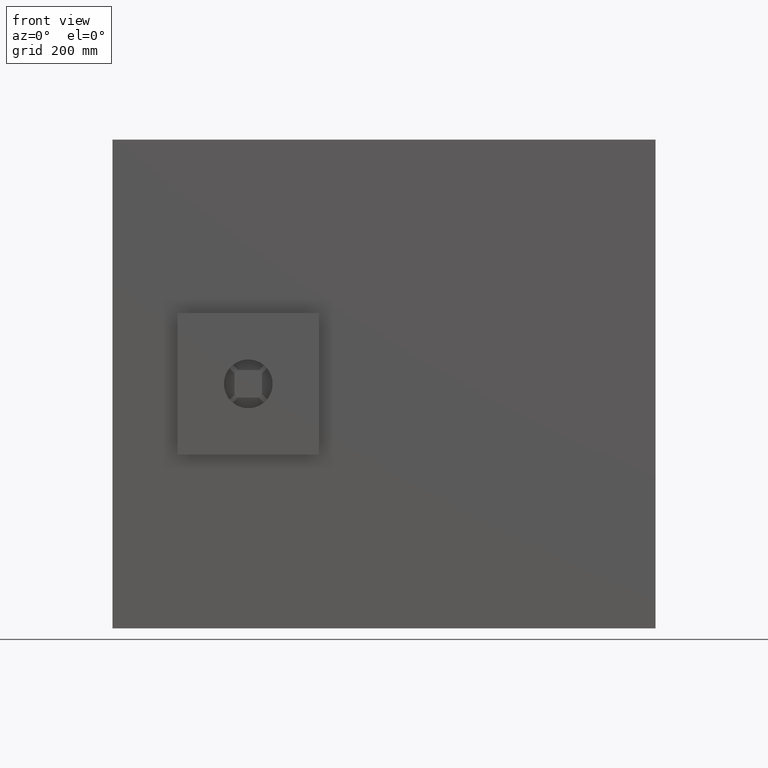
[diagram: clean part render]
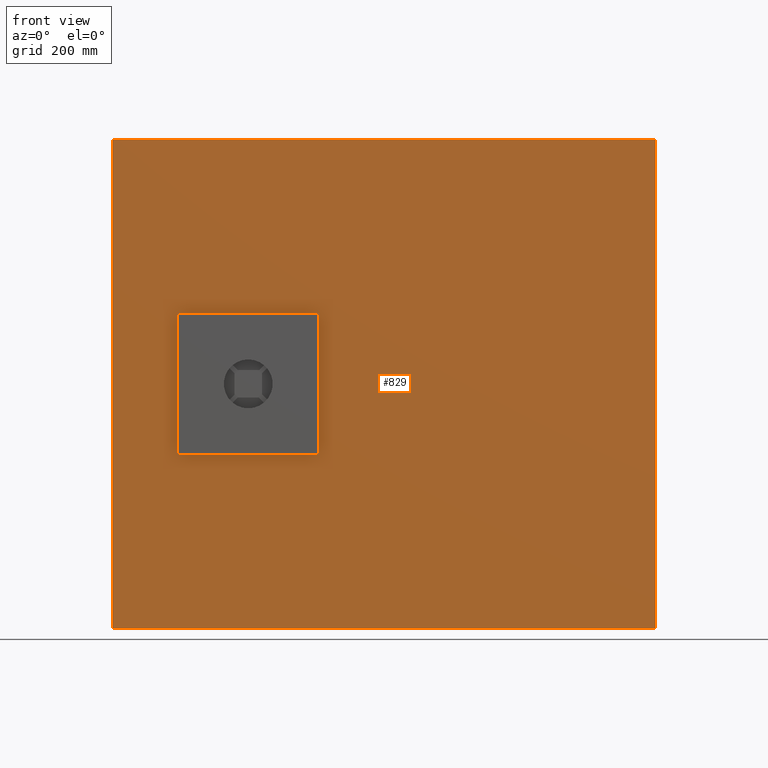
[diagram: same view with one face highlighted and labeled with its STEP entity id]
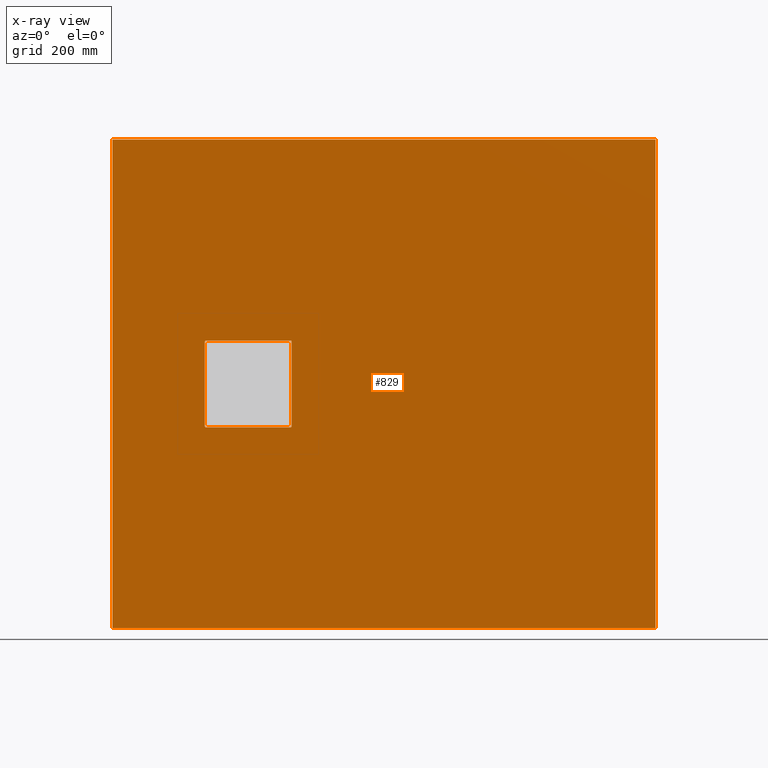
[diagram: x-ray of the same camera — body ghosted, the highlighted face saturated]
A machine part, front view. The second image highlights one B-rep face of the part: STEP entity #829.
The next image is the same camera in x-ray: the body ghosted, the highlighted face saturated — about 0% of this face is hidden behind the body in this view.
In plain terms, the highlighted planar face has unit normal (0, 1, 0).
Its self-contained STEP definition (entity closure, byte-faithful):
#26 = CIRCLE ( 'NONE', #2065, 2.500000000000002200 ) ;
#32 = VERTEX_POINT ( 'NONE', #859 ) ;
#62 = EDGE_CURVE ( 'NONE', #839, #1597, #1187, .T. ) ;
#68 = ORIENTED_EDGE ( 'NONE', *, *, #1830, .F. ) ;
#80 = ORIENTED_EDGE ( 'NONE', *, *, #2831, .T. ) ;
#104 = LINE ( 'NONE', #1188, #2818 ) ;
#168 = ORIENTED_EDGE ( 'NONE', *, *, #1477, .T. ) ;
#224 = CARTESIAN_POINT ( 'NONE',  ( 500.0000000000000000, 0.0000000000000000000, -450.0000000000002300 ) ) ;
#228 = FACE_BOUND ( 'NONE', #250, .T. ) ;
#250 = EDGE_LOOP ( 'NONE', ( #830, #3089, #1817, #168, #2284, #80, #396, #886 ) ) ;
#268 = DIRECTION ( 'NONE',  ( -1.233581138472396200E-016, -0.0000000000000000000, -1.000000000000000000 ) ) ;
#288 = LINE ( 'NONE', #3149, #1631 ) ;
#326 = CARTESIAN_POINT ( 'NONE',  ( -327.5000000000001100, 0.0000000000000000000, 79.99999999999984400 ) ) ;
#349 = FACE_OUTER_BOUND ( 'NONE', #2066, .T. ) ;
#359 = CARTESIAN_POINT ( 'NONE',  ( 500.0000000000000000, 0.0000000000000000000, -450.0000000000002300 ) ) ;
#396 = ORIENTED_EDGE ( 'NONE', *, *, #1508, .T. ) ;
#628 = CARTESIAN_POINT ( 'NONE',  ( 500.0000000000000000, 0.0000000000000000000, 449.9999999999998300 ) ) ;
#635 = ORIENTED_EDGE ( 'NONE', *, *, #1827, .F. ) ;
#652 = CARTESIAN_POINT ( 'NONE',  ( -330.0000000000000600, 0.0000000000000000000, 77.49999999999990100 ) ) ;
#676 = CARTESIAN_POINT ( 'NONE',  ( -330.0000000000000600, 0.0000000000000000000, -77.50000000000024200 ) ) ;
#680 = DIRECTION ( 'NONE',  ( 0.0000000000000000000, 1.000000000000000000, 0.0000000000000000000 ) ) ;
#683 = ORIENTED_EDGE ( 'NONE', *, *, #2115, .F. ) ;
#700 = CARTESIAN_POINT ( 'NONE',  ( -327.4999999999996600, 0.0000000000000000000, -77.50000000000024200 ) ) ;
#705 = DIRECTION ( 'NONE',  ( 0.0000000000000000000, 1.000000000000000000, 0.0000000000000000000 ) ) ;
#721 = VECTOR ( 'NONE', #3176, 1000.000000000000000 ) ;
#733 = DIRECTION ( 'NONE',  ( 0.0000000000000000000, 0.0000000000000000000, 1.000000000000000000 ) ) ;
#829 = ADVANCED_FACE ( 'NONE', ( #228, #349 ), #1519, .F. ) ;
#830 = ORIENTED_EDGE ( 'NONE', *, *, #2120, .T. ) ;
#839 = VERTEX_POINT ( 'NONE', #652 ) ;
#859 = CARTESIAN_POINT ( 'NONE',  ( -327.4999999999996600, 0.0000000000000000000, -80.00000000000018500 ) ) ;
#886 = ORIENTED_EDGE ( 'NONE', *, *, #62, .T. ) ;
#946 = AXIS2_PLACEMENT_3D ( 'NONE', #2040, #2033, #2026 ) ;
#974 = DIRECTION ( 'NONE',  ( 1.000000000000000000, 0.0000000000000000000, -8.953411488912546000E-017 ) ) ;
#987 = ORIENTED_EDGE ( 'NONE', *, *, #2707, .F. ) ;
#1187 = CIRCLE ( 'NONE', #3270, 2.499999999999974200 ) ;
#1188 = CARTESIAN_POINT ( 'NONE',  ( -500.0000000000000000, 0.0000000000000000000, 449.9999999999998300 ) ) ;
#1201 = VERTEX_POINT ( 'NONE', #2116 ) ;
#1219 = CARTESIAN_POINT ( 'NONE',  ( -500.0000000000000000, 0.0000000000000000000, -450.0000000000002300 ) ) ;
#1242 = DIRECTION ( 'NONE',  ( 0.0000000000000000000, 0.0000000000000000000, 1.000000000000000000 ) ) ;
#1304 = DIRECTION ( 'NONE',  ( 1.233581138472396200E-016, 0.0000000000000000000, 1.000000000000000000 ) ) ;
#1321 = DIRECTION ( 'NONE',  ( 0.0000000000000000000, 1.000000000000000000, 0.0000000000000000000 ) ) ;
#1385 = LINE ( 'NONE', #2293, #3036 ) ;
#1435 = VECTOR ( 'NONE', #268, 1000.000000000000000 ) ;
#1477 = EDGE_CURVE ( 'NONE', #2733, #2776, #3143, .T. ) ;
#1506 = LINE ( 'NONE', #326, #1933 ) ;
#1508 = EDGE_CURVE ( 'NONE', #3216, #839, #3110, .T. ) ;
#1519 = PLANE ( 'NONE',  #2335 ) ;
#1572 = LINE ( 'NONE', #224, #1435 ) ;
#1597 = VERTEX_POINT ( 'NONE', #1784 ) ;
#1631 = VECTOR ( 'NONE', #3146, 1000.000000000000000 ) ;
#1679 = VERTEX_POINT ( 'NONE', #359 ) ;
#1784 = CARTESIAN_POINT ( 'NONE',  ( -327.5000000000001100, 0.0000000000000000000, 79.99999999999984400 ) ) ;
#1805 = CARTESIAN_POINT ( 'NONE',  ( -500.0000000000000000, 0.0000000000000000000, 449.9999999999998300 ) ) ;
#1817 = ORIENTED_EDGE ( 'NONE', *, *, #2258, .T. ) ;
#1827 = EDGE_CURVE ( 'NONE', #2686, #3021, #104, .T. ) ;
#1830 = EDGE_CURVE ( 'NONE', #2009, #2686, #2368, .T. ) ;
#1885 = CARTESIAN_POINT ( 'NONE',  ( -330.0000000000000600, 0.0000000000000000000, -77.50000000000024200 ) ) ;
#1924 = EDGE_CURVE ( 'NONE', #2776, #32, #3152, .T. ) ;
#1933 = VECTOR ( 'NONE', #974, 1000.000000000000000 ) ;
#2009 = VERTEX_POINT ( 'NONE', #3189 ) ;
#2026 = DIRECTION ( 'NONE',  ( 0.0000000000000000000, 0.0000000000000000000, -1.000000000000000000 ) ) ;
#2033 = DIRECTION ( 'NONE',  ( 0.0000000000000000000, 1.000000000000000000, -0.0000000000000000000 ) ) ;
#2040 = CARTESIAN_POINT ( 'NONE',  ( -172.4999999999998900, 0.0000000000000000000, -77.50000000000024200 ) ) ;
#2065 = AXIS2_PLACEMENT_3D ( 'NONE', #2112, #2518, #2448 ) ;
#2066 = EDGE_LOOP ( 'NONE', ( #68, #987, #683, #635 ) ) ;
#2084 = CARTESIAN_POINT ( 'NONE',  ( -500.0000000000000000, 0.0000000000000000000, 449.9999999999998300 ) ) ;
#2112 = CARTESIAN_POINT ( 'NONE',  ( -172.4999999999998900, 0.0000000000000000000, 77.49999999999990100 ) ) ;
#2115 = EDGE_CURVE ( 'NONE', #3021, #1679, #1572, .T. ) ;
#2116 = CARTESIAN_POINT ( 'NONE',  ( -169.9999999999999400, 0.0000000000000000000, 77.49999999999990100 ) ) ;
#2120 = EDGE_CURVE ( 'NONE', #1597, #2976, #1506, .T. ) ;
#2187 = CARTESIAN_POINT ( 'NONE',  ( -172.4999999999998900, 0.0000000000000000000, -80.00000000000018500 ) ) ;
#2258 = EDGE_CURVE ( 'NONE', #1201, #2733, #288, .T. ) ;
#2284 = ORIENTED_EDGE ( 'NONE', *, *, #1924, .T. ) ;
#2293 = CARTESIAN_POINT ( 'NONE',  ( -500.0000000000000000, 0.0000000000000000000, -450.0000000000002300 ) ) ;
#2302 = DIRECTION ( 'NONE',  ( -1.000000000000000000, -0.0000000000000000000, -0.0000000000000000000 ) ) ;
#2309 = VECTOR ( 'NONE', #1304, 1000.000000000000000 ) ;
#2335 = AXIS2_PLACEMENT_3D ( 'NONE', #2084, #680, #3233 ) ;
#2342 = DIRECTION ( 'NONE',  ( 1.000000000000000000, 0.0000000000000000000, 0.0000000000000000000 ) ) ;
#2347 = CARTESIAN_POINT ( 'NONE',  ( -169.9999999999999400, 0.0000000000000000000, -77.50000000000024200 ) ) ;
#2368 = LINE ( 'NONE', #1219, #2309 ) ;
#2417 = AXIS2_PLACEMENT_3D ( 'NONE', #700, #705, #733 ) ;
#2448 = DIRECTION ( 'NONE',  ( 0.0000000000000000000, 0.0000000000000000000, 1.000000000000000000 ) ) ;
#2518 = DIRECTION ( 'NONE',  ( 0.0000000000000000000, 1.000000000000000000, 0.0000000000000000000 ) ) ;
#2686 = VERTEX_POINT ( 'NONE', #1805 ) ;
#2688 = EDGE_CURVE ( 'NONE', #2976, #1201, #26, .T. ) ;
#2707 = EDGE_CURVE ( 'NONE', #1679, #2009, #1385, .T. ) ;
#2733 = VERTEX_POINT ( 'NONE', #2347 ) ;
#2776 = VERTEX_POINT ( 'NONE', #2187 ) ;
#2818 = VECTOR ( 'NONE', #2342, 1000.000000000000000 ) ;
#2831 = EDGE_CURVE ( 'NONE', #32, #3216, #2968, .T. ) ;
#2968 = CIRCLE ( 'NONE', #2417, 2.500000000000030200 ) ;
#2976 = VERTEX_POINT ( 'NONE', #2988 ) ;
#2978 = CARTESIAN_POINT ( 'NONE',  ( -327.5000000000001100, 0.0000000000000000000, 77.49999999999990100 ) ) ;
#2987 = CARTESIAN_POINT ( 'NONE',  ( -327.4999999999996600, 0.0000000000000000000, -80.00000000000018500 ) ) ;
#2988 = CARTESIAN_POINT ( 'NONE',  ( -172.4999999999998900, 0.0000000000000000000, 79.99999999999984400 ) ) ;
#3021 = VERTEX_POINT ( 'NONE', #628 ) ;
#3036 = VECTOR ( 'NONE', #2302, 1000.000000000000000 ) ;
#3089 = ORIENTED_EDGE ( 'NONE', *, *, #2688, .T. ) ;
#3110 = LINE ( 'NONE', #1885, #3135 ) ;
#3129 = DIRECTION ( 'NONE',  ( 0.0000000000000000000, 0.0000000000000000000, 1.000000000000000000 ) ) ;
#3135 = VECTOR ( 'NONE', #3129, 1000.000000000000000 ) ;
#3143 = CIRCLE ( 'NONE', #946, 2.500000000000016000 ) ;
#3146 = DIRECTION ( 'NONE',  ( -1.790682297782509700E-016, -0.0000000000000000000, -1.000000000000000000 ) ) ;
#3149 = CARTESIAN_POINT ( 'NONE',  ( -169.9999999999999400, 0.0000000000000000000, -77.50000000000024200 ) ) ;
#3152 = LINE ( 'NONE', #2987, #721 ) ;
#3176 = DIRECTION ( 'NONE',  ( -1.000000000000000000, -0.0000000000000000000, 1.790682297782511200E-016 ) ) ;
#3189 = CARTESIAN_POINT ( 'NONE',  ( -500.0000000000000000, 0.0000000000000000000, -450.0000000000002300 ) ) ;
#3216 = VERTEX_POINT ( 'NONE', #676 ) ;
#3233 = DIRECTION ( 'NONE',  ( 0.0000000000000000000, -0.0000000000000000000, 1.000000000000000000 ) ) ;
#3270 = AXIS2_PLACEMENT_3D ( 'NONE', #2978, #1321, #1242 ) ;